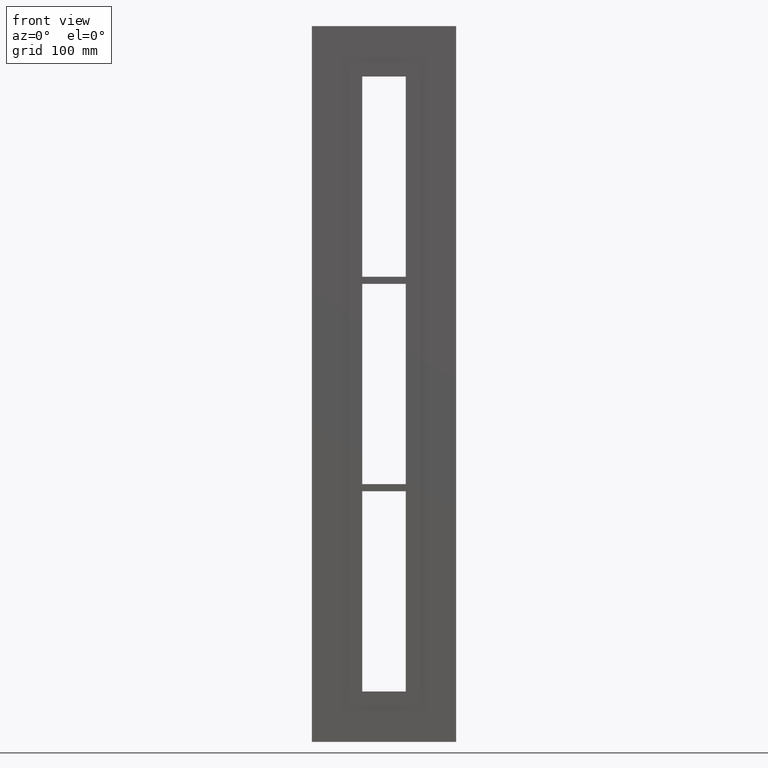
[diagram: clean part render]
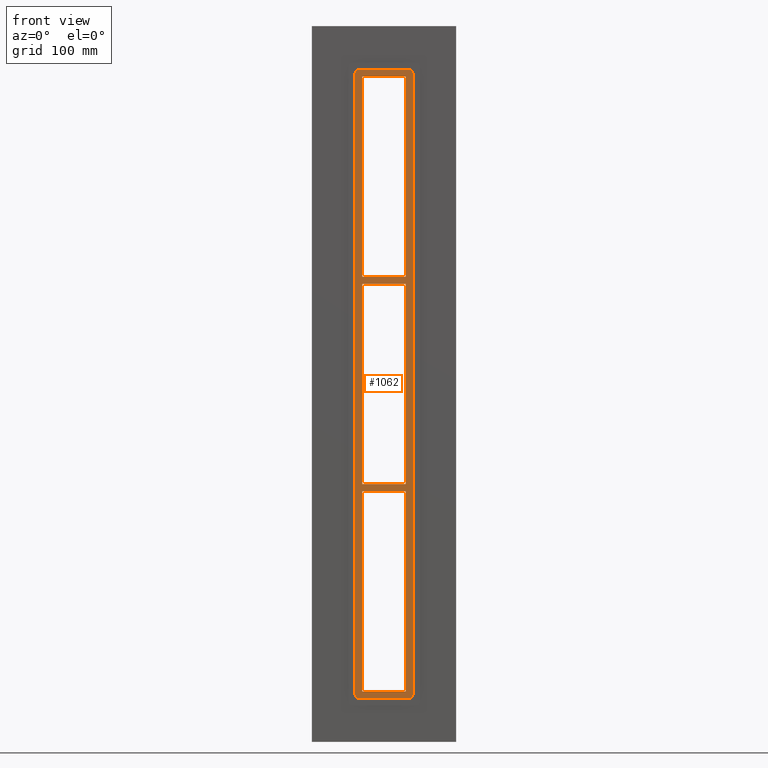
[diagram: same view with one face highlighted and labeled with its STEP entity id]
A machine part, front view. The second image highlights one B-rep face of the part: STEP entity #1062.
In plain terms, the highlighted planar face has unit normal (0, 1, 0).
Its self-contained STEP definition (entity closure, byte-faithful):
#73=CARTESIAN_POINT('',(30.250000000000021,-5.0,139.00000000000003));
#74=VERTEX_POINT('',#73);
#75=CARTESIAN_POINT('',(-30.250000000002643,-5.0,138.99999999999909));
#76=VERTEX_POINT('',#75);
#77=CARTESIAN_POINT('',(30.250000000000021,-5.0,139.00000000000003));
#78=DIRECTION('',(-1.0,0.0,0.0));
#79=VECTOR('',#78,60.500000000002665);
#80=LINE('',#77,#79);
#81=EDGE_CURVE('',#74,#76,#80,.T.);
#113=CARTESIAN_POINT('',(-30.250000000000004,-5.0,149.00000000000003));
#114=VERTEX_POINT('',#113);
#115=CARTESIAN_POINT('',(30.250000000000888,-5.0,148.99999999999909));
#116=VERTEX_POINT('',#115);
#117=CARTESIAN_POINT('',(-30.250000000000004,-5.0,149.00000000000003));
#118=DIRECTION('',(1.0,0.0,0.0));
#119=VECTOR('',#118,60.500000000000895);
#120=LINE('',#117,#119);
#121=EDGE_CURVE('',#114,#116,#120,.T.);
#162=CARTESIAN_POINT('',(-30.250000000000004,-5.0,427.0));
#163=VERTEX_POINT('',#162);
#170=CARTESIAN_POINT('',(-30.250000000000004,-5.0,149.0));
#171=DIRECTION('',(0.0,0.0,1.0));
#172=VECTOR('',#171,278.00000000000011);
#173=LINE('',#170,#172);
#174=EDGE_CURVE('',#114,#163,#173,.T.);
#193=CARTESIAN_POINT('',(30.250000000000888,-5.0,-139.00000000000091));
#194=VERTEX_POINT('',#193);
#201=CARTESIAN_POINT('',(30.250000000000021,-5.0,139.0));
#202=DIRECTION('',(0.0,0.0,-1.0));
#203=VECTOR('',#202,278.00000000000091);
#204=LINE('',#201,#203);
#205=EDGE_CURVE('',#74,#194,#204,.T.);
#216=CARTESIAN_POINT('',(30.250000000000021,-5.0,427.0));
#217=VERTEX_POINT('',#216);
#218=CARTESIAN_POINT('',(30.250000000000021,-5.0,427.0));
#219=DIRECTION('',(0.0,0.0,-1.0));
#220=VECTOR('',#219,278.00000000000091);
#221=LINE('',#218,#220);
#222=EDGE_CURVE('',#217,#116,#221,.T.);
#246=CARTESIAN_POINT('',(30.250000000000021,-5.0,-149.0));
#247=VERTEX_POINT('',#246);
#248=CARTESIAN_POINT('',(-30.250000000002643,-5.0,-149.00000000000091));
#249=VERTEX_POINT('',#248);
#250=CARTESIAN_POINT('',(30.250000000000021,-5.0,-149.0));
#251=DIRECTION('',(-1.0,0.0,0.0));
#252=VECTOR('',#251,60.500000000002665);
#253=LINE('',#250,#252);
#254=EDGE_CURVE('',#247,#249,#253,.T.);
#286=CARTESIAN_POINT('',(-30.250000000000004,-5.0,-139.0));
#287=VERTEX_POINT('',#286);
#288=CARTESIAN_POINT('',(-30.250000000000004,-5.0,-139.0));
#289=DIRECTION('',(1.0,0.0,0.0));
#290=VECTOR('',#289,60.500000000000895);
#291=LINE('',#288,#290);
#292=EDGE_CURVE('',#287,#194,#291,.T.);
#318=CARTESIAN_POINT('',(-30.250000000000004,-5.0,-138.99999999999997));
#319=DIRECTION('',(0.0,0.0,1.0));
#320=VECTOR('',#319,277.99999999999909);
#321=LINE('',#318,#320);
#322=EDGE_CURVE('',#287,#76,#321,.T.);
#348=CARTESIAN_POINT('',(30.250000000000021,-5.0,-427.0));
#349=VERTEX_POINT('',#348);
#356=CARTESIAN_POINT('',(30.250000000000021,-5.0,-149.0));
#357=DIRECTION('',(0.0,0.0,-1.0));
#358=VECTOR('',#357,278.00000000000011);
#359=LINE('',#356,#358);
#360=EDGE_CURVE('',#247,#349,#359,.T.);
#659=CARTESIAN_POINT('',(-30.250000000000004,-5.0,-427.0));
#660=VERTEX_POINT('',#659);
#661=CARTESIAN_POINT('',(-30.250000000000004,-5.0,-427.0));
#662=DIRECTION('',(0.0,0.0,1.0));
#663=VECTOR('',#662,277.99999999999909);
#664=LINE('',#661,#663);
#665=EDGE_CURVE('',#660,#249,#664,.T.);
#690=CARTESIAN_POINT('',(-34.250000000000043,-5.0,-437.0));
#691=VERTEX_POINT('',#690);
#698=CARTESIAN_POINT('',(-40.250000000000021,-5.0,-431.00000000000011));
#699=VERTEX_POINT('',#698);
#700=CARTESIAN_POINT('',(-34.250000000000043,-5.0,-431.0));
#701=DIRECTION('',(0.0,-1.0,0.0));
#702=DIRECTION('',(0.0,0.0,-1.0));
#703=AXIS2_PLACEMENT_3D('',#700,#701,#702);
#704=CIRCLE('',#703,6.000000000000014);
#705=EDGE_CURVE('',#699,#691,#704,.T.);
#755=CARTESIAN_POINT('',(-40.250000000000021,-5.0,431.00000000000011));
#756=VERTEX_POINT('',#755);
#757=CARTESIAN_POINT('',(-40.250000000000021,-5.0,431.00000000000011));
#758=DIRECTION('',(0.0,0.0,-1.0));
#759=VECTOR('',#758,862.00000000000023);
#760=LINE('',#757,#759);
#761=EDGE_CURVE('',#756,#699,#760,.T.);
#802=CARTESIAN_POINT('',(34.250000000000007,-5.0,-437.0));
#803=VERTEX_POINT('',#802);
#810=CARTESIAN_POINT('',(-34.25000000000005,-5.0,-436.99999999999994));
#811=DIRECTION('',(1.0,0.0,0.0));
#812=VECTOR('',#811,68.500000000000057);
#813=LINE('',#810,#812);
#814=EDGE_CURVE('',#691,#803,#813,.T.);
#827=CARTESIAN_POINT('',(-34.250000000000043,-5.0,437.0));
#828=VERTEX_POINT('',#827);
#829=CARTESIAN_POINT('',(-34.250000000000043,-5.0,431.00000000000011));
#830=DIRECTION('',(0.0,-1.0,0.0));
#831=DIRECTION('',(-1.0,0.0,0.0));
#832=AXIS2_PLACEMENT_3D('',#829,#830,#831);
#833=CIRCLE('',#832,6.000000000000014);
#834=EDGE_CURVE('',#828,#756,#833,.T.);
#876=CARTESIAN_POINT('',(40.249999999999986,-5.0,-431.00000000000011));
#877=VERTEX_POINT('',#876);
#884=CARTESIAN_POINT('',(34.250000000000007,-5.0,-431.0));
#885=DIRECTION('',(0.0,-1.0,0.0));
#886=DIRECTION('',(1.0,0.0,0.0));
#887=AXIS2_PLACEMENT_3D('',#884,#885,#886);
#888=CIRCLE('',#887,6.000000000000014);
#889=EDGE_CURVE('',#803,#877,#888,.T.);
#902=CARTESIAN_POINT('',(34.250000000000007,-5.0,437.0));
#903=VERTEX_POINT('',#902);
#904=CARTESIAN_POINT('',(34.250000000000014,-5.0,437.0));
#905=DIRECTION('',(-1.0,0.0,0.0));
#906=VECTOR('',#905,68.500000000000057);
#907=LINE('',#904,#906);
#908=EDGE_CURVE('',#903,#828,#907,.T.);
#949=CARTESIAN_POINT('',(40.249999999999986,-5.0,431.00000000000011));
#950=VERTEX_POINT('',#949);
#957=CARTESIAN_POINT('',(40.249999999999986,-5.0,-431.00000000000011));
#958=DIRECTION('',(0.0,0.0,1.0));
#959=VECTOR('',#958,862.00000000000023);
#960=LINE('',#957,#959);
#961=EDGE_CURVE('',#877,#950,#960,.T.);
#974=CARTESIAN_POINT('',(34.250000000000007,-5.0,431.00000000000011));
#975=DIRECTION('',(0.0,-1.0,0.0));
#976=DIRECTION('',(0.0,0.0,1.0));
#977=AXIS2_PLACEMENT_3D('',#974,#975,#976);
#978=CIRCLE('',#977,6.000000000000014);
#979=EDGE_CURVE('',#950,#903,#978,.T.);
#998=CARTESIAN_POINT('',(-30.250000000000004,-5.0,427.0));
#999=DIRECTION('',(1.0,0.0,0.0));
#1000=VECTOR('',#999,60.500000000000021);
#1001=LINE('',#998,#1000);
#1002=EDGE_CURVE('',#163,#217,#1001,.T.);
#1013=CARTESIAN_POINT('',(30.250000000000021,-5.0,-427.0));
#1014=DIRECTION('',(-1.0,0.0,0.0));
#1015=VECTOR('',#1014,60.500000000000028);
#1016=LINE('',#1013,#1015);
#1017=EDGE_CURVE('',#349,#660,#1016,.T.);
#1029=CARTESIAN_POINT('',(-1.884578E-014,-5.0,2.566834E-014));
#1030=DIRECTION('',(0.0,1.0,0.0));
#1031=DIRECTION('',(0.0,0.0,1.0));
#1032=AXIS2_PLACEMENT_3D('',#1029,#1030,#1031);
#1033=PLANE('',#1032);
#1034=ORIENTED_EDGE('',*,*,#961,.T.);
#1035=ORIENTED_EDGE('',*,*,#979,.T.);
#1036=ORIENTED_EDGE('',*,*,#908,.T.);
#1037=ORIENTED_EDGE('',*,*,#834,.T.);
#1038=ORIENTED_EDGE('',*,*,#761,.T.);
#1039=ORIENTED_EDGE('',*,*,#705,.T.);
#1040=ORIENTED_EDGE('',*,*,#814,.T.);
#1041=ORIENTED_EDGE('',*,*,#889,.T.);
#1042=EDGE_LOOP('',(#1034,#1035,#1036,#1037,#1038,#1039,#1040,#1041));
#1043=FACE_OUTER_BOUND('',#1042,.T.);
#1044=ORIENTED_EDGE('',*,*,#174,.T.);
#1045=ORIENTED_EDGE('',*,*,#1002,.T.);
#1046=ORIENTED_EDGE('',*,*,#222,.T.);
#1047=ORIENTED_EDGE('',*,*,#121,.F.);
#1048=EDGE_LOOP('',(#1044,#1045,#1046,#1047));
#1049=FACE_BOUND('',#1048,.T.);
#1050=ORIENTED_EDGE('',*,*,#81,.F.);
#1051=ORIENTED_EDGE('',*,*,#205,.T.);
#1052=ORIENTED_EDGE('',*,*,#292,.F.);
#1053=ORIENTED_EDGE('',*,*,#322,.T.);
#1054=EDGE_LOOP('',(#1050,#1051,#1052,#1053));
#1055=FACE_BOUND('',#1054,.T.);
#1056=ORIENTED_EDGE('',*,*,#254,.F.);
#1057=ORIENTED_EDGE('',*,*,#360,.T.);
#1058=ORIENTED_EDGE('',*,*,#1017,.T.);
#1059=ORIENTED_EDGE('',*,*,#665,.T.);
#1060=EDGE_LOOP('',(#1056,#1057,#1058,#1059));
#1061=FACE_BOUND('',#1060,.T.);
#1062=ADVANCED_FACE('',(#1043,#1049,#1055,#1061),#1033,.F.);